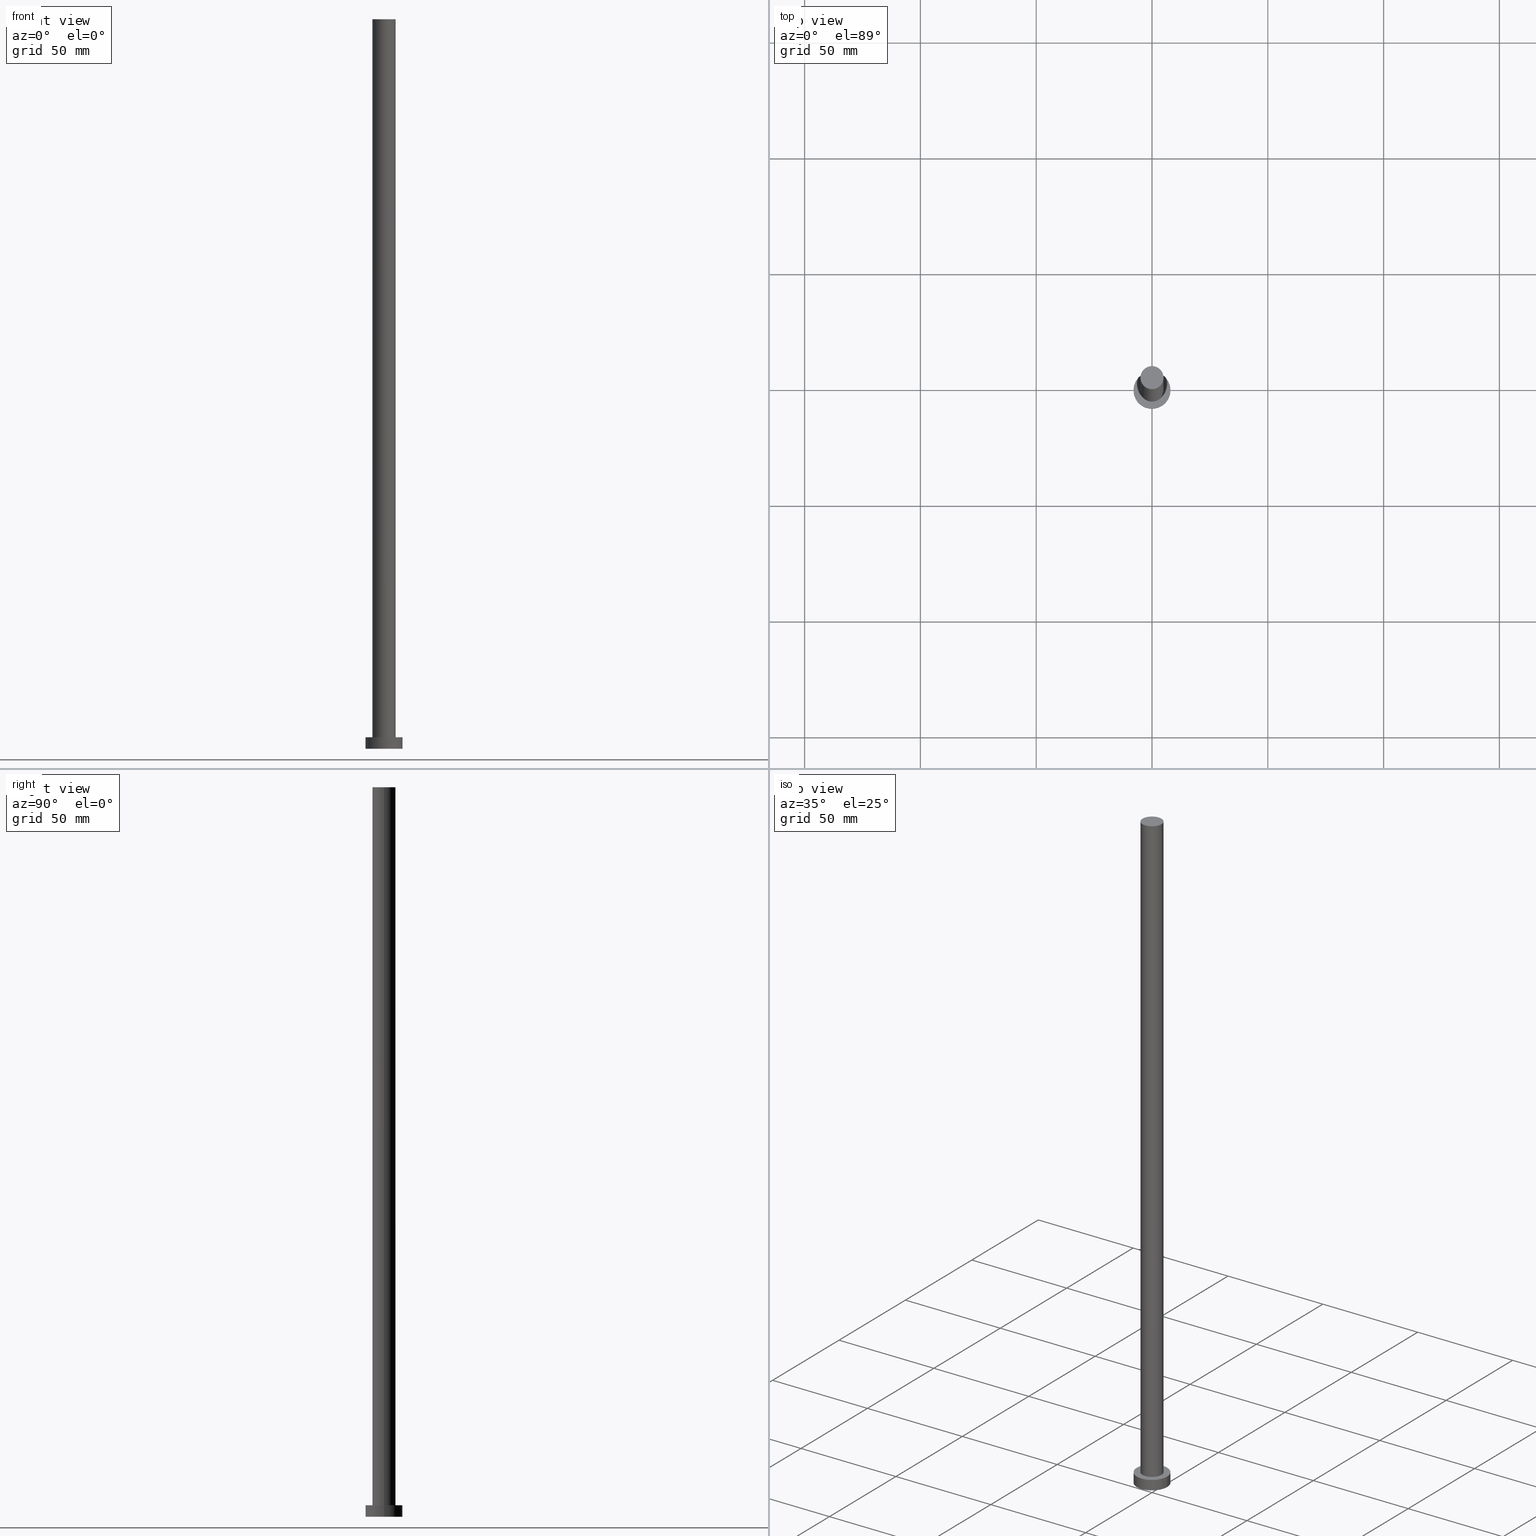
[diagram: canonical four-view strip — front | top / right | iso, engineering-drawing reading convention]
A machine part, canonical four-view strip (front | top / right | iso — engineering-drawing reading convention). The complete STEP part file that produces these views, byte-faithful:
ISO-10303-21;
HEADER;
FILE_DESCRIPTION (( 'STEP AP203' ),
    '1' );
FILE_NAME ('b23e.STEP',
    '2023-02-13T09:59:11',
    ( '' ),
    ( '' ),
    'SwSTEP 2.0',
    'SolidWorks 2019',
    '' );
FILE_SCHEMA (( 'CONFIG_CONTROL_DESIGN' ));
ENDSEC;

DATA;
#1 =( GEOMETRIC_REPRESENTATION_CONTEXT ( 3 ) GLOBAL_UNCERTAINTY_ASSIGNED_CONTEXT ( ( #77 ) ) GLOBAL_UNIT_ASSIGNED_CONTEXT ( ( #202, #22, #209 ) ) REPRESENTATION_CONTEXT ( 'NONE', 'WORKASPACE' ) );
#2 = COORDINATED_UNIVERSAL_TIME_OFFSET ( 1, 0, .AHEAD. ) ;
#3 = APPLICATION_CONTEXT ( 'configuration controlled 3d designs of mechanical parts and assemblies' ) ;
#4 = CARTESIAN_POINT ( 'NONE',  ( 0.000000000000000000, 0.000000000000000000, 5.000000000000000000 ) ) ;
#5 = CALENDAR_DATE ( 2023, 13, 2 ) ;
#6 = LINE ( 'NONE', #116, #157 ) ;
#7 = CIRCLE ( 'NONE', #31, 8.000000000000000000 ) ;
#8 = CYLINDRICAL_SURFACE ( 'NONE', #92, 5.000000000000000888 ) ;
#9 = PERSON_AND_ORGANIZATION_ROLE ( 'creator' ) ;
#10 = CARTESIAN_POINT ( 'NONE',  ( -8.000000000000000000, 0.000000000000000000, 5.000000000000000000 ) ) ;
#11 = FACE_OUTER_BOUND ( 'NONE', #180, .T. ) ;
#12 = AXIS2_PLACEMENT_3D ( 'NONE', #53, #176, #217 ) ;
#13 = EDGE_LOOP ( 'NONE', ( #26, #46, #132, #79 ) ) ;
#14 = EDGE_LOOP ( 'NONE', ( #89, #251 ) ) ;
#15 = FACE_OUTER_BOUND ( 'NONE', #36, .T. ) ;
#16 = CLOSED_SHELL ( 'NONE', ( #248, #152, #200, #115, #24, #253, #148 ) ) ;
#17 = ORIENTED_EDGE ( 'NONE', *, *, #159, .F. ) ;
#18 = CIRCLE ( 'NONE', #32, 5.000000000000000888 ) ;
#19 = PERSON_AND_ORGANIZATION ( #136, #67 ) ;
#20 = CYLINDRICAL_SURFACE ( 'NONE', #225, 5.000000000000000888 ) ;
#21 = MANIFOLD_SOLID_BREP ( 'P�idat vysunut�m3', #16 ) ;
#22 =( NAMED_UNIT ( * ) PLANE_ANGLE_UNIT ( ) SI_UNIT ( $, .RADIAN. ) );
#23 = APPROVAL_ROLE ( '' ) ;
#24 = ADVANCED_FACE ( 'NONE', ( #15 ), #174, .F. ) ;
#25 = COORDINATED_UNIVERSAL_TIME_OFFSET ( 1, 0, .AHEAD. ) ;
#26 = ORIENTED_EDGE ( 'NONE', *, *, #178, .F. ) ;
#27 = DIRECTION ( 'NONE',  ( 0.000000000000000000, 0.000000000000000000, 1.000000000000000000 ) ) ;
#28 = ORIENTED_EDGE ( 'NONE', *, *, #63, .F. ) ;
#29 = EDGE_CURVE ( 'NONE', #44, #147, #144, .T. ) ;
#30 = APPLICATION_CONTEXT ( 'configuration controlled 3d designs of mechanical parts and assemblies' ) ;
#31 = AXIS2_PLACEMENT_3D ( 'NONE', #150, #111, #133 ) ;
#32 = AXIS2_PLACEMENT_3D ( 'NONE', #73, #93, #156 ) ;
#33 = LINE ( 'NONE', #249, #173 ) ;
#34 = DIRECTION ( 'NONE',  ( 1.000000000000000000, 0.000000000000000000, 0.000000000000000000 ) ) ;
#35 = LOCAL_TIME ( 10, 59, 11.00000000000000000, #25 ) ;
#36 = EDGE_LOOP ( 'NONE', ( #107, #229 ) ) ;
#37 = SECURITY_CLASSIFICATION_LEVEL ( 'unclassified' ) ;
#38 = CARTESIAN_POINT ( 'NONE',  ( 0.000000000000000000, 0.000000000000000000, 315.0000000000000000 ) ) ;
#39 = CALENDAR_DATE ( 2023, 13, 2 ) ;
#40 = CARTESIAN_POINT ( 'NONE',  ( 0.000000000000000000, 0.000000000000000000, 5.000000000000000000 ) ) ;
#41 = EDGE_CURVE ( 'NONE', #51, #240, #7, .T. ) ;
#42 = COORDINATED_UNIVERSAL_TIME_OFFSET ( 1, 0, .AHEAD. ) ;
#43 = APPLICATION_PROTOCOL_DEFINITION ( 'international standard', 'config_control_design', 1994, #3 ) ;
#44 = VERTEX_POINT ( 'NONE', #130 ) ;
#45 = AXIS2_PLACEMENT_3D ( 'NONE', #4, #161, #84 ) ;
#46 = ORIENTED_EDGE ( 'NONE', *, *, #138, .F. ) ;
#47 = CC_DESIGN_PERSON_AND_ORGANIZATION_ASSIGNMENT ( #224, #226, ( #151 ) ) ;
#48 = APPROVAL_DATE_TIME ( #228, #74 ) ;
#49 = FACE_BOUND ( 'NONE', #215, .T. ) ;
#50 = PRODUCT_DEFINITION_SHAPE ( 'NONE', 'NONE',  #54 ) ;
#51 = VERTEX_POINT ( 'NONE', #135 ) ;
#52 = ORIENTED_EDGE ( 'NONE', *, *, #68, .F. ) ;
#53 = CARTESIAN_POINT ( 'NONE',  ( 0.000000000000000000, 0.000000000000000000, 5.000000000000000000 ) ) ;
#54 = PRODUCT_DEFINITION ( 'NEZN�M�', '', #85, #252 ) ;
#55 = CYLINDRICAL_SURFACE ( 'NONE', #45, 8.000000000000000000 ) ;
#56 = ORIENTED_EDGE ( 'NONE', *, *, #138, .T. ) ;
#57 = CC_DESIGN_APPROVAL ( #95, ( #154 ) ) ;
#58 = CC_DESIGN_PERSON_AND_ORGANIZATION_ASSIGNMENT ( #223, #221, ( #85 ) ) ;
#59 = DATE_AND_TIME ( #5, #195 ) ;
#60 = DIRECTION ( 'NONE',  ( 1.000000000000000000, 0.000000000000000000, -0.000000000000000000 ) ) ;
#61 = CC_DESIGN_APPROVAL ( #193, ( #85 ) ) ;
#62 = DIRECTION ( 'NONE',  ( -1.000000000000000000, 0.000000000000000000, 0.000000000000000000 ) ) ;
#63 = EDGE_CURVE ( 'NONE', #167, #181, #238, .T. ) ;
#64 = PERSON_AND_ORGANIZATION ( #136, #67 ) ;
#65 = ORIENTED_EDGE ( 'NONE', *, *, #178, .T. ) ;
#66 = CARTESIAN_POINT ( 'NONE',  ( -8.000000000000000000, 0.000000000000000000, 5.000000000000000000 ) ) ;
#67 = ORGANIZATION ( 'NEUR�EN�', 'NEUR�EN�', '' ) ;
#68 = EDGE_CURVE ( 'NONE', #233, #169, #18, .T. ) ;
#69 = LOCAL_TIME ( 10, 59, 11.00000000000000000, #163 ) ;
#70 = ORIENTED_EDGE ( 'NONE', *, *, #231, .F. ) ;
#71 = CARTESIAN_POINT ( 'NONE',  ( 0.000000000000000000, 0.000000000000000000, 5.000000000000000000 ) ) ;
#72 = CIRCLE ( 'NONE', #194, 5.000000000000000888 ) ;
#73 = CARTESIAN_POINT ( 'NONE',  ( 0.000000000000000000, 0.000000000000000000, 5.000000000000000000 ) ) ;
#74 = APPROVAL ( #208, 'NEUR�EN�' ) ;
#75 = DIRECTION ( 'NONE',  ( 0.000000000000000000, 0.000000000000000000, 1.000000000000000000 ) ) ;
#76 = DIRECTION ( 'NONE',  ( -0.000000000000000000, -0.000000000000000000, -1.000000000000000000 ) ) ;
#77 = UNCERTAINTY_MEASURE_WITH_UNIT (LENGTH_MEASURE( 1.000000000000000082E-05 ), #202, 'distance_accuracy_value', 'NONE');
#78 = PLANE ( 'NONE',  #12 ) ;
#79 = ORIENTED_EDGE ( 'NONE', *, *, #159, .T. ) ;
#80 = AXIS2_PLACEMENT_3D ( 'NONE', #40, #96, #121 ) ;
#81 = APPROVAL_PERSON_ORGANIZATION ( #97, #95, #23 ) ;
#82 = CC_DESIGN_DATE_AND_TIME_ASSIGNMENT ( #165, #117, ( #154 ) ) ;
#83 = EDGE_CURVE ( 'NONE', #240, #51, #129, .T. ) ;
#84 = DIRECTION ( 'NONE',  ( -1.000000000000000000, 0.000000000000000000, 0.000000000000000000 ) ) ;
#85 = PRODUCT_DEFINITION_FORMATION_WITH_SPECIFIED_SOURCE ( 'LIBOVOLN�', '', #151, .NOT_KNOWN. ) ;
#86 = AXIS2_PLACEMENT_3D ( 'NONE', #155, #234, #34 ) ;
#87 = PLANE ( 'NONE',  #206 ) ;
#88 = FACE_OUTER_BOUND ( 'NONE', #14, .T. ) ;
#89 = ORIENTED_EDGE ( 'NONE', *, *, #231, .T. ) ;
#90 = CARTESIAN_POINT ( 'NONE',  ( 0.000000000000000000, 0.000000000000000000, 315.0000000000000000 ) ) ;
#91 = ORIENTED_EDGE ( 'NONE', *, *, #41, .T. ) ;
#92 = AXIS2_PLACEMENT_3D ( 'NONE', #38, #118, #62 ) ;
#93 = DIRECTION ( 'NONE',  ( 0.000000000000000000, 0.000000000000000000, 1.000000000000000000 ) ) ;
#94 = ORIENTED_EDGE ( 'NONE', *, *, #83, .T. ) ;
#95 = APPROVAL ( #120, 'NEUR�EN�' ) ;
#96 = DIRECTION ( 'NONE',  ( 0.000000000000000000, 0.000000000000000000, 1.000000000000000000 ) ) ;
#97 = PERSON_AND_ORGANIZATION ( #136, #67 ) ;
#98 = VECTOR ( 'NONE', #211, 1000.000000000000000 ) ;
#99 = COORDINATED_UNIVERSAL_TIME_OFFSET ( 1, 0, .AHEAD. ) ;
#100 = DIRECTION ( 'NONE',  ( -0.000000000000000000, -0.000000000000000000, -1.000000000000000000 ) ) ;
#101 = DIRECTION ( 'NONE',  ( -1.000000000000000000, 0.000000000000000000, 0.000000000000000000 ) ) ;
#102 = CC_DESIGN_APPROVAL ( #74, ( #54 ) ) ;
#103 = APPROVAL_STATUS ( 'not_yet_approved' ) ;
#104 = CARTESIAN_POINT ( 'NONE',  ( 0.000000000000000000, 0.000000000000000000, 5.000000000000000000 ) ) ;
#105 = LINE ( 'NONE', #108, #244 ) ;
#106 = ORIENTED_EDGE ( 'NONE', *, *, #29, .F. ) ;
#107 = ORIENTED_EDGE ( 'NONE', *, *, #41, .F. ) ;
#108 = CARTESIAN_POINT ( 'NONE',  ( 5.000000000000000888, 6.123233995736767268E-16, 315.0000000000000000 ) ) ;
#109 = CIRCLE ( 'NONE', #86, 5.000000000000000888 ) ;
#110 = CARTESIAN_POINT ( 'NONE',  ( 0.000000000000000000, 0.000000000000000000, 0.000000000000000000 ) ) ;
#111 = DIRECTION ( 'NONE',  ( 0.000000000000000000, 0.000000000000000000, 1.000000000000000000 ) ) ;
#112 = CARTESIAN_POINT ( 'NONE',  ( -5.000000000000000888, 0.000000000000000000, 315.0000000000000000 ) ) ;
#113 = APPROVAL_PERSON_ORGANIZATION ( #239, #193, #237 ) ;
#114 = ORIENTED_EDGE ( 'NONE', *, *, #207, .F. ) ;
#115 = ADVANCED_FACE ( 'NONE', ( #49, #88 ), #78, .T. ) ;
#116 = CARTESIAN_POINT ( 'NONE',  ( 8.000000000000000000, 9.797174393178825657E-16, 5.000000000000000000 ) ) ;
#117 = DATE_TIME_ROLE ( 'classification_date' ) ;
#118 = DIRECTION ( 'NONE',  ( -0.000000000000000000, -0.000000000000000000, -1.000000000000000000 ) ) ;
#119 = AXIS2_PLACEMENT_3D ( 'NONE', #90, #75, #179 ) ;
#120 = APPROVAL_STATUS ( 'not_yet_approved' ) ;
#121 = DIRECTION ( 'NONE',  ( 1.000000000000000000, 0.000000000000000000, 0.000000000000000000 ) ) ;
#122 = CARTESIAN_POINT ( 'NONE',  ( 0.000000000000000000, 0.000000000000000000, 315.0000000000000000 ) ) ;
#123 = PERSON_AND_ORGANIZATION ( #136, #67 ) ;
#124 = EDGE_LOOP ( 'NONE', ( #56, #142 ) ) ;
#125 = ORIENTED_EDGE ( 'NONE', *, *, #128, .F. ) ;
#126 = EDGE_LOOP ( 'NONE', ( #28, #210, #94, #134 ) ) ;
#127 = DIRECTION ( 'NONE',  ( 0.000000000000000000, 0.000000000000000000, 1.000000000000000000 ) ) ;
#128 = EDGE_CURVE ( 'NONE', #147, #169, #33, .T. ) ;
#129 = CIRCLE ( 'NONE', #182, 8.000000000000000000 ) ;
#130 = CARTESIAN_POINT ( 'NONE',  ( 5.000000000000000888, 6.123233995736767268E-16, 315.0000000000000000 ) ) ;
#131 = FACE_OUTER_BOUND ( 'NONE', #126, .T. ) ;
#132 = ORIENTED_EDGE ( 'NONE', *, *, #128, .T. ) ;
#133 = DIRECTION ( 'NONE',  ( 1.000000000000000000, 0.000000000000000000, 0.000000000000000000 ) ) ;
#134 = ORIENTED_EDGE ( 'NONE', *, *, #166, .F. ) ;
#135 = CARTESIAN_POINT ( 'NONE',  ( -8.000000000000000000, 0.000000000000000000, 0.000000000000000000 ) ) ;
#136 = PERSON ( 'NEUR�EN�', 'NEUR�EN�', 'NEUR�EN�', ('NEUR�EN�'), ('NEUR�EN�'), ('NEUR�EN�') ) ;
#137 = LOCAL_TIME ( 10, 59, 11.00000000000000000, #42 ) ;
#138 = EDGE_CURVE ( 'NONE', #147, #44, #109, .T. ) ;
#139 = DIRECTION ( 'NONE',  ( -1.000000000000000000, 0.000000000000000000, 0.000000000000000000 ) ) ;
#140 = APPROVAL_DATE_TIME ( #59, #193 ) ;
#141 = DIRECTION ( 'NONE',  ( 1.000000000000000000, 0.000000000000000000, 0.000000000000000000 ) ) ;
#142 = ORIENTED_EDGE ( 'NONE', *, *, #29, .T. ) ;
#143 = CC_DESIGN_PERSON_AND_ORGANIZATION_ASSIGNMENT ( #19, #9, ( #85 ) ) ;
#144 = CIRCLE ( 'NONE', #119, 5.000000000000000888 ) ;
#145 = CARTESIAN_POINT ( 'NONE',  ( 0.000000000000000000, 0.000000000000000000, 0.000000000000000000 ) ) ;
#146 = APPLICATION_PROTOCOL_DEFINITION ( 'international standard', 'config_control_design', 1994, #30 ) ;
#147 = VERTEX_POINT ( 'NONE', #112 ) ;
#148 = ADVANCED_FACE ( 'NONE', ( #199 ), #87, .T. ) ;
#149 = ADVANCED_BREP_SHAPE_REPRESENTATION ( 'b23e', ( #21, #230 ), #1 ) ;
#150 = CARTESIAN_POINT ( 'NONE',  ( 0.000000000000000000, 0.000000000000000000, 0.000000000000000000 ) ) ;
#151 = PRODUCT ( 'b23e', 'b23e', '', ( #188 ) ) ;
#152 = ADVANCED_FACE ( 'NONE', ( #131 ), #55, .T. ) ;
#153 = DIRECTION ( 'NONE',  ( 1.000000000000000000, 0.000000000000000000, 0.000000000000000000 ) ) ;
#154 = SECURITY_CLASSIFICATION ( '', '', #37 ) ;
#155 = CARTESIAN_POINT ( 'NONE',  ( 0.000000000000000000, 0.000000000000000000, 315.0000000000000000 ) ) ;
#156 = DIRECTION ( 'NONE',  ( 1.000000000000000000, 0.000000000000000000, 0.000000000000000000 ) ) ;
#157 = VECTOR ( 'NONE', #160, 1000.000000000000000 ) ;
#158 = CARTESIAN_POINT ( 'NONE',  ( 0.000000000000000000, 0.000000000000000000, 315.0000000000000000 ) ) ;
#159 = EDGE_CURVE ( 'NONE', #169, #233, #72, .T. ) ;
#160 = DIRECTION ( 'NONE',  ( -0.000000000000000000, -0.000000000000000000, -1.000000000000000000 ) ) ;
#161 = DIRECTION ( 'NONE',  ( -0.000000000000000000, -0.000000000000000000, -1.000000000000000000 ) ) ;
#162 = CALENDAR_DATE ( 2023, 13, 2 ) ;
#163 = COORDINATED_UNIVERSAL_TIME_OFFSET ( 1, 0, .AHEAD. ) ;
#164 = FACE_OUTER_BOUND ( 'NONE', #13, .T. ) ;
#165 = DATE_AND_TIME ( #39, #246 ) ;
#166 = EDGE_CURVE ( 'NONE', #181, #51, #189, .T. ) ;
#167 = VERTEX_POINT ( 'NONE', #212 ) ;
#168 = PERSON_AND_ORGANIZATION ( #136, #67 ) ;
#169 = VERTEX_POINT ( 'NONE', #242 ) ;
#170 = CYLINDRICAL_SURFACE ( 'NONE', #218, 8.000000000000000000 ) ;
#171 = CC_DESIGN_DATE_AND_TIME_ASSIGNMENT ( #220, #184, ( #54 ) ) ;
#172 = DIRECTION ( 'NONE',  ( 1.000000000000000000, 0.000000000000000000, -0.000000000000000000 ) ) ;
#173 = VECTOR ( 'NONE', #76, 1000.000000000000000 ) ;
#174 = PLANE ( 'NONE',  #227 ) ;
#175 = CC_DESIGN_PERSON_AND_ORGANIZATION_ASSIGNMENT ( #123, #205, ( #154 ) ) ;
#176 = DIRECTION ( 'NONE',  ( 0.000000000000000000, 0.000000000000000000, 1.000000000000000000 ) ) ;
#177 = DIRECTION ( 'NONE',  ( 0.000000000000000000, 0.000000000000000000, 1.000000000000000000 ) ) ;
#178 = EDGE_CURVE ( 'NONE', #44, #233, #105, .T. ) ;
#179 = DIRECTION ( 'NONE',  ( 1.000000000000000000, 0.000000000000000000, 0.000000000000000000 ) ) ;
#180 = EDGE_LOOP ( 'NONE', ( #114, #70, #235, #91 ) ) ;
#181 = VERTEX_POINT ( 'NONE', #66 ) ;
#182 = AXIS2_PLACEMENT_3D ( 'NONE', #110, #196, #250 ) ;
#183 = PERSON_AND_ORGANIZATION_ROLE ( 'creator' ) ;
#184 = DATE_TIME_ROLE ( 'creation_date' ) ;
#185 = CALENDAR_DATE ( 2023, 13, 2 ) ;
#186 = AXIS2_PLACEMENT_3D ( 'NONE', #232, #177, #153 ) ;
#187 = APPROVAL_DATE_TIME ( #222, #95 ) ;
#188 = MECHANICAL_CONTEXT ( 'NONE', #3, 'mechanical' ) ;
#189 = LINE ( 'NONE', #10, #98 ) ;
#190 = CALENDAR_DATE ( 2023, 13, 2 ) ;
#191 = EDGE_LOOP ( 'NONE', ( #106, #65, #216, #125 ) ) ;
#192 = DIRECTION ( 'NONE',  ( -0.000000000000000000, -0.000000000000000000, -1.000000000000000000 ) ) ;
#193 = APPROVAL ( #103, 'NEUR�EN�' ) ;
#194 = AXIS2_PLACEMENT_3D ( 'NONE', #104, #127, #245 ) ;
#195 = LOCAL_TIME ( 10, 59, 11.00000000000000000, #2 ) ;
#196 = DIRECTION ( 'NONE',  ( 0.000000000000000000, 0.000000000000000000, 1.000000000000000000 ) ) ;
#197 = CARTESIAN_POINT ( 'NONE',  ( 0.000000000000000000, 0.000000000000000000, 0.000000000000000000 ) ) ;
#198 = PRODUCT_RELATED_PRODUCT_CATEGORY ( 'detail', '', ( #151 ) ) ;
#199 = FACE_OUTER_BOUND ( 'NONE', #124, .T. ) ;
#200 = ADVANCED_FACE ( 'NONE', ( #11 ), #170, .T. ) ;
#201 = APPROVAL_PERSON_ORGANIZATION ( #168, #74, #243 ) ;
#202 =( LENGTH_UNIT ( ) NAMED_UNIT ( * ) SI_UNIT ( .MILLI., .METRE. ) );
#203 = FACE_OUTER_BOUND ( 'NONE', #191, .T. ) ;
#204 = CARTESIAN_POINT ( 'NONE',  ( 5.000000000000000888, 6.123233995736767268E-16, 5.000000000000000000 ) ) ;
#205 = PERSON_AND_ORGANIZATION_ROLE ( 'classification_officer' ) ;
#206 = AXIS2_PLACEMENT_3D ( 'NONE', #122, #254, #60 ) ;
#207 = EDGE_CURVE ( 'NONE', #167, #240, #6, .T. ) ;
#208 = APPROVAL_STATUS ( 'not_yet_approved' ) ;
#209 =( NAMED_UNIT ( * ) SI_UNIT ( $, .STERADIAN. ) SOLID_ANGLE_UNIT ( ) );
#210 = ORIENTED_EDGE ( 'NONE', *, *, #207, .T. ) ;
#211 = DIRECTION ( 'NONE',  ( -0.000000000000000000, -0.000000000000000000, -1.000000000000000000 ) ) ;
#212 = CARTESIAN_POINT ( 'NONE',  ( 8.000000000000000000, 9.797174393178825657E-16, 5.000000000000000000 ) ) ;
#213 = CIRCLE ( 'NONE', #80, 8.000000000000000000 ) ;
#214 = CC_DESIGN_SECURITY_CLASSIFICATION ( #154, ( #85 ) ) ;
#215 = EDGE_LOOP ( 'NONE', ( #17, #52 ) ) ;
#216 = ORIENTED_EDGE ( 'NONE', *, *, #68, .T. ) ;
#217 = DIRECTION ( 'NONE',  ( 1.000000000000000000, 0.000000000000000000, -0.000000000000000000 ) ) ;
#218 = AXIS2_PLACEMENT_3D ( 'NONE', #71, #219, #101 ) ;
#219 = DIRECTION ( 'NONE',  ( -0.000000000000000000, -0.000000000000000000, -1.000000000000000000 ) ) ;
#220 = DATE_AND_TIME ( #185, #69 ) ;
#221 = PERSON_AND_ORGANIZATION_ROLE ( 'design_supplier' ) ;
#222 = DATE_AND_TIME ( #162, #137 ) ;
#223 = PERSON_AND_ORGANIZATION ( #136, #67 ) ;
#224 = PERSON_AND_ORGANIZATION ( #136, #67 ) ;
#225 = AXIS2_PLACEMENT_3D ( 'NONE', #158, #100, #139 ) ;
#226 = PERSON_AND_ORGANIZATION_ROLE ( 'design_owner' ) ;
#227 = AXIS2_PLACEMENT_3D ( 'NONE', #197, #247, #172 ) ;
#228 = DATE_AND_TIME ( #190, #35 ) ;
#229 = ORIENTED_EDGE ( 'NONE', *, *, #83, .F. ) ;
#230 = AXIS2_PLACEMENT_3D ( 'NONE', #145, #27, #141 ) ;
#231 = EDGE_CURVE ( 'NONE', #181, #167, #213, .T. ) ;
#232 = CARTESIAN_POINT ( 'NONE',  ( 0.000000000000000000, 0.000000000000000000, 5.000000000000000000 ) ) ;
#233 = VERTEX_POINT ( 'NONE', #204 ) ;
#234 = DIRECTION ( 'NONE',  ( 0.000000000000000000, 0.000000000000000000, 1.000000000000000000 ) ) ;
#235 = ORIENTED_EDGE ( 'NONE', *, *, #166, .T. ) ;
#236 = CC_DESIGN_PERSON_AND_ORGANIZATION_ASSIGNMENT ( #64, #183, ( #54 ) ) ;
#237 = APPROVAL_ROLE ( '' ) ;
#238 = CIRCLE ( 'NONE', #186, 8.000000000000000000 ) ;
#239 = PERSON_AND_ORGANIZATION ( #136, #67 ) ;
#240 = VERTEX_POINT ( 'NONE', #255 ) ;
#241 = SHAPE_DEFINITION_REPRESENTATION ( #50, #149 ) ;
#242 = CARTESIAN_POINT ( 'NONE',  ( -5.000000000000000888, 0.000000000000000000, 5.000000000000000000 ) ) ;
#243 = APPROVAL_ROLE ( '' ) ;
#244 = VECTOR ( 'NONE', #192, 1000.000000000000000 ) ;
#245 = DIRECTION ( 'NONE',  ( 1.000000000000000000, 0.000000000000000000, 0.000000000000000000 ) ) ;
#246 = LOCAL_TIME ( 10, 59, 11.00000000000000000, #99 ) ;
#247 = DIRECTION ( 'NONE',  ( 0.000000000000000000, 0.000000000000000000, 1.000000000000000000 ) ) ;
#248 = ADVANCED_FACE ( 'NONE', ( #203 ), #20, .T. ) ;
#249 = CARTESIAN_POINT ( 'NONE',  ( -5.000000000000000888, 0.000000000000000000, 315.0000000000000000 ) ) ;
#250 = DIRECTION ( 'NONE',  ( 1.000000000000000000, 0.000000000000000000, 0.000000000000000000 ) ) ;
#251 = ORIENTED_EDGE ( 'NONE', *, *, #63, .T. ) ;
#252 = DESIGN_CONTEXT ( 'detailed design', #30, 'design' ) ;
#253 = ADVANCED_FACE ( 'NONE', ( #164 ), #8, .T. ) ;
#254 = DIRECTION ( 'NONE',  ( 0.000000000000000000, 0.000000000000000000, 1.000000000000000000 ) ) ;
#255 = CARTESIAN_POINT ( 'NONE',  ( 8.000000000000000000, 9.797174393178825657E-16, 0.000000000000000000 ) ) ;
ENDSEC;
END-ISO-10303-21;
